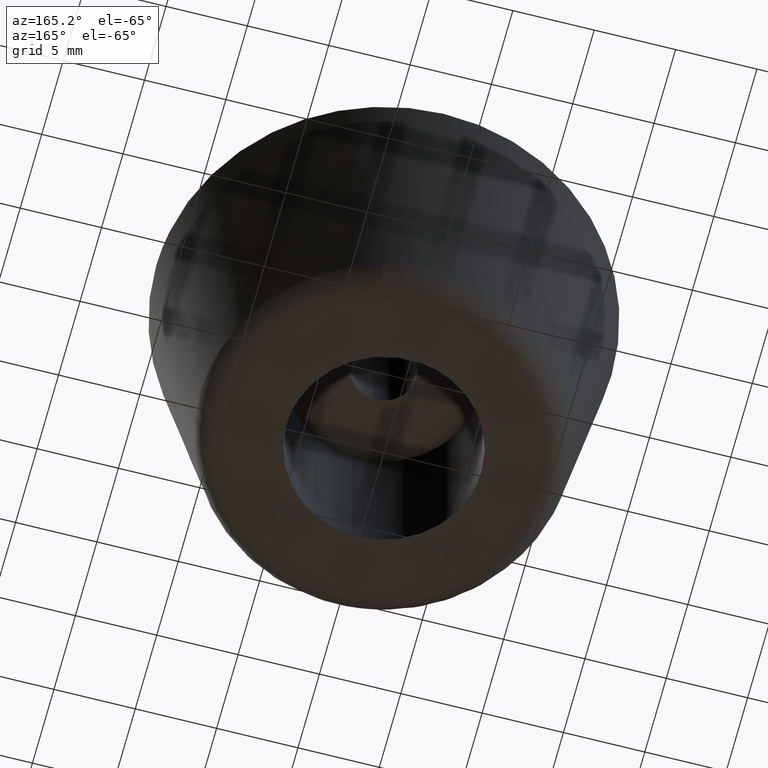
[diagram: clean part render]
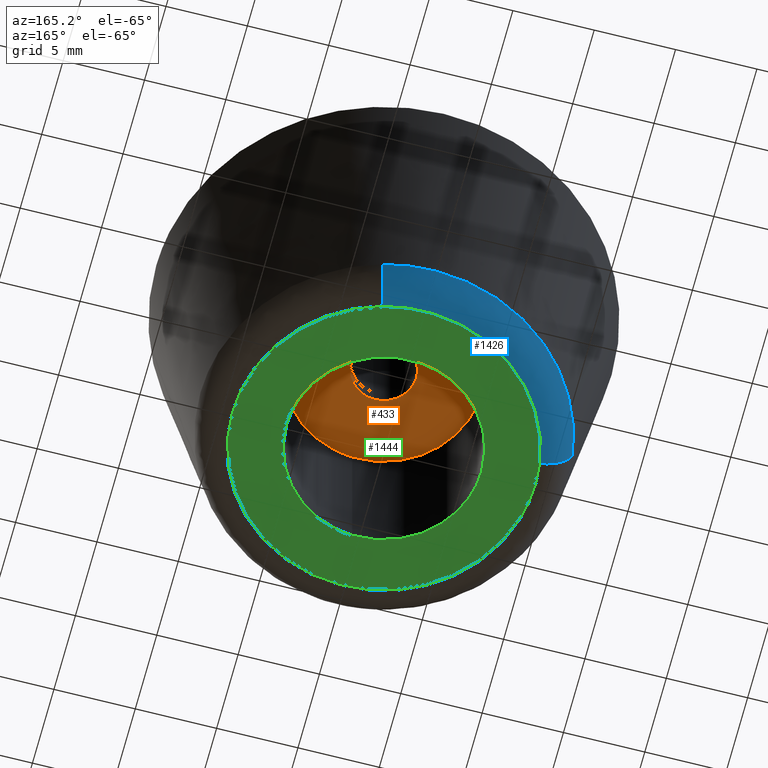
[diagram: same view with three faces highlighted in distinct colors, each labeled with its STEP entity id]
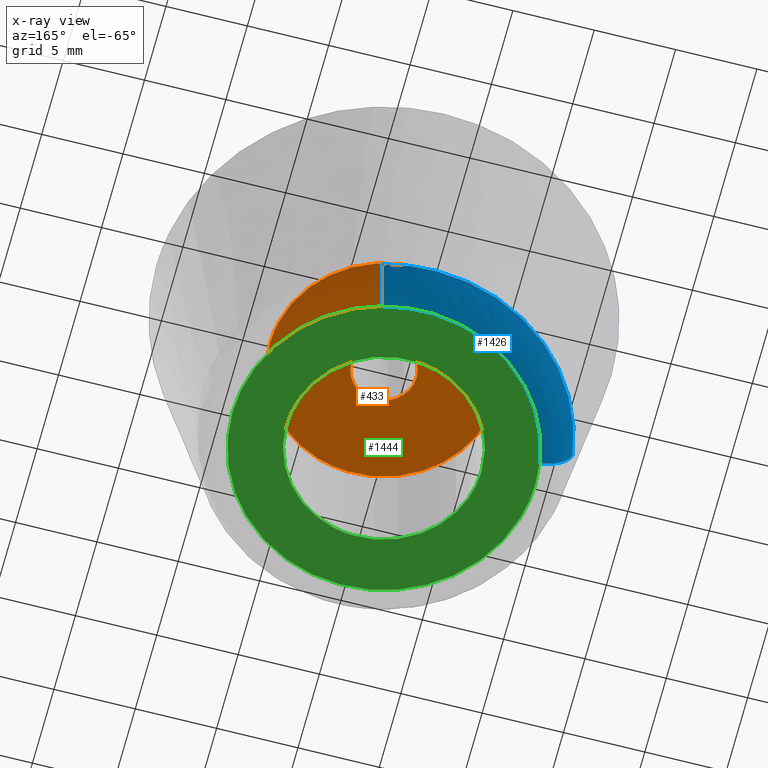
[diagram: x-ray of the same camera — body ghosted, the three highlighted faces saturated]
A machine part, auxiliary view with three faces highlighted in distinct colors.
The next image is the same camera in x-ray (body ghosted, the three faces saturated) — at least one of them is partly hidden behind the body in this view.
Their STEP definitions:

[orange] entity #433 — the highlighted face is a freeform B-spline surface patch.
#66=CARTESIAN_POINT('',(-0.236065760811937,1.986019374670056,11.000000000000130));
#67=VERTEX_POINT('',#66);
#68=CARTESIAN_POINT('',(2.0,0.0,11.0));
#69=VERTEX_POINT('',#68);
#70=CARTESIAN_POINT('',(-0.236065760811937,1.986019374670057,11.000000000000130));
#71=CARTESIAN_POINT('',(-0.118446870736341,2.000000000000000,11.000000000000002));
#72=CARTESIAN_POINT('',(0.0,2.0,11.0));
#73=CARTESIAN_POINT('',(2.000000000000000,2.000000000000000,11.0));
#74=CARTESIAN_POINT('',(2.0,0.0,11.0));
#82=(BOUNDED_CURVE()B_SPLINE_CURVE(2,(#70,#71,#72,#73,#74),.UNSPECIFIED.,.F.,.U.)B_SPLINE_CURVE_WITH_KNOTS((3,2,3),(0.229562703999639,0.250000000000000,0.500000000000000),.UNSPECIFIED.)CURVE()GEOMETRIC_REPRESENTATION_ITEM()RATIONAL_B_SPLINE_CURVE((0.956027205946445,0.976056218362443,1.0,0.707106781186548,1.0))REPRESENTATION_ITEM(''));
#83=EDGE_CURVE('',#67,#69,#82,.T.);
#85=CARTESIAN_POINT('',(0.122097079096483,-1.996269596842097,11.0));
#86=VERTEX_POINT('',#85);
#87=CARTESIAN_POINT('',(2.0,0.0,11.0));
#88=CARTESIAN_POINT('',(2.0,-1.881412133760827,11.0));
#89=CARTESIAN_POINT('',(0.122097079096483,-1.996269596842096,11.0));
#97=(BOUNDED_CURVE()B_SPLINE_CURVE(2,(#87,#88,#89),.UNSPECIFIED.,.F.,.U.)B_SPLINE_CURVE_WITH_KNOTS((3,3),(0.500000000000000,0.739332962237340),.UNSPECIFIED.)CURVE()GEOMETRIC_REPRESENTATION_ITEM()RATIONAL_B_SPLINE_CURVE((1.0,0.719603993288588,0.976072041663282))REPRESENTATION_ITEM(''));
#98=EDGE_CURVE('',#69,#86,#97,.T.);
#165=CARTESIAN_POINT('',(-2.0,0.0,11.0));
#166=VERTEX_POINT('',#165);
#167=CARTESIAN_POINT('',(-2.0,0.0,11.0));
#168=CARTESIAN_POINT('',(-1.999999999999999,1.776351491514780,11.0));
#169=CARTESIAN_POINT('',(-0.236065760811937,1.986019374670057,11.000000000000130));
#177=(BOUNDED_CURVE()B_SPLINE_CURVE(2,(#167,#168,#169),.UNSPECIFIED.,.F.,.U.)B_SPLINE_CURVE_WITH_KNOTS((3,3),(0.0,0.229562703999639),.UNSPECIFIED.)CURVE()GEOMETRIC_REPRESENTATION_ITEM()RATIONAL_B_SPLINE_CURVE((1.0,0.731050562824104,0.956027205946445))REPRESENTATION_ITEM(''));
#178=EDGE_CURVE('',#166,#67,#177,.T.);
#212=CARTESIAN_POINT('',(0.122097079096483,-1.996269596842096,11.000000000000004));
#213=CARTESIAN_POINT('',(0.061105526624022,-2.000000000000000,10.999999999999996));
#214=CARTESIAN_POINT('',(0.0,-2.0,11.0));
#215=CARTESIAN_POINT('',(-2.000000000000000,-2.000000000000000,11.0));
#216=CARTESIAN_POINT('',(-2.0,0.0,11.0));
#224=(BOUNDED_CURVE()B_SPLINE_CURVE(2,(#212,#213,#214,#215,#216),.UNSPECIFIED.,.F.,.U.)B_SPLINE_CURVE_WITH_KNOTS((3,2,3),(0.739332962237341,0.750000000000000,1.0),.UNSPECIFIED.)CURVE()GEOMETRIC_REPRESENTATION_ITEM()RATIONAL_B_SPLINE_CURVE((0.976072041663284,0.987502787897960,1.0,0.707106781186548,1.0))REPRESENTATION_ITEM(''));
#225=EDGE_CURVE('',#86,#166,#224,.T.);
#252=CARTESIAN_POINT('',(-0.826236732452056,6.951067030459306,11.000000000000080));
#253=VERTEX_POINT('',#252);
#254=CARTESIAN_POINT('',(7.0,0.0,11.0));
#255=VERTEX_POINT('',#254);
#256=CARTESIAN_POINT('',(-0.826236732452056,6.951067030459306,11.000000000000078));
#257=CARTESIAN_POINT('',(-0.414567367107993,7.0,11.000000000000002));
#258=CARTESIAN_POINT('',(0.0,7.0,11.0));
#259=CARTESIAN_POINT('',(6.999999999999999,6.999999999999999,11.0));
#260=CARTESIAN_POINT('',(7.0,0.0,11.0));
#268=(BOUNDED_CURVE()B_SPLINE_CURVE(2,(#256,#257,#258,#259,#260),.UNSPECIFIED.,.F.,.U.)B_SPLINE_CURVE_WITH_KNOTS((3,2,3),(0.229562544270831,0.250000000000000,0.500000000000000),.UNSPECIFIED.)CURVE()GEOMETRIC_REPRESENTATION_ITEM()RATIONAL_B_SPLINE_CURVE((0.956026892870993,0.976056031228504,1.0,0.707106781186547,1.0))REPRESENTATION_ITEM(''));
#269=EDGE_CURVE('',#253,#255,#268,.T.);
#310=CARTESIAN_POINT('',(0.427335137410301,-6.986943872703781,10.999999999999840));
#311=VERTEX_POINT('',#310);
#317=CARTESIAN_POINT('',(7.0,0.0,11.0));
#318=CARTESIAN_POINT('',(7.0,-6.584946848916482,11.0));
#319=CARTESIAN_POINT('',(0.427335137410301,-6.986943872703781,10.999999999999847));
#327=(BOUNDED_CURVE()B_SPLINE_CURVE(2,(#317,#318,#319),.UNSPECIFIED.,.F.,.U.)B_SPLINE_CURVE_WITH_KNOTS((3,3),(0.500000000000000,0.739333076813124),.UNSPECIFIED.)CURVE()GEOMETRIC_REPRESENTATION_ITEM()RATIONAL_B_SPLINE_CURVE((1.0,0.719603859054707,0.976072287221122))REPRESENTATION_ITEM(''));
#328=EDGE_CURVE('',#255,#311,#327,.T.);
#351=CARTESIAN_POINT('',(-7.0,0.0,11.0));
#352=VERTEX_POINT('',#351);
#353=CARTESIAN_POINT('',(-7.0,0.0,11.0));
#354=CARTESIAN_POINT('',(-6.999999999999999,6.217224302896083,11.0));
#355=CARTESIAN_POINT('',(-0.826236732452056,6.951067030459306,11.000000000000078));
#363=(BOUNDED_CURVE()B_SPLINE_CURVE(2,(#353,#354,#355),.UNSPECIFIED.,.F.,.U.)B_SPLINE_CURVE_WITH_KNOTS((3,3),(0.0,0.229562544270831),.UNSPECIFIED.)CURVE()GEOMETRIC_REPRESENTATION_ITEM()RATIONAL_B_SPLINE_CURVE((1.0,0.731050749958043,0.956026892870993))REPRESENTATION_ITEM(''));
#364=EDGE_CURVE('',#352,#253,#363,.T.);
#366=CARTESIAN_POINT('',(0.427335137410301,-6.986943872703781,10.999999999999847));
#367=CARTESIAN_POINT('',(0.213867016919271,-6.999999999999999,11.000000000000004));
#368=CARTESIAN_POINT('',(0.0,-7.0,11.0));
#369=CARTESIAN_POINT('',(-6.999999999999999,-6.999999999999999,11.0));
#370=CARTESIAN_POINT('',(-7.0,0.0,11.0));
#378=(BOUNDED_CURVE()B_SPLINE_CURVE(2,(#366,#367,#368,#369,#370),.UNSPECIFIED.,.F.,.U.)B_SPLINE_CURVE_WITH_KNOTS((3,2,3),(0.739333076813124,0.750000000000000,1.0),.UNSPECIFIED.)CURVE()GEOMETRIC_REPRESENTATION_ITEM()RATIONAL_B_SPLINE_CURVE((0.976072287221122,0.987502922131841,1.0,0.707106781186547,1.0))REPRESENTATION_ITEM(''));
#379=EDGE_CURVE('',#311,#352,#378,.T.);
#416=CARTESIAN_POINT('',(-7.699299972865284,-7.699130124775166,11.0));
#417=CARTESIAN_POINT('',(7.699300348374545,-7.699130124775166,11.0));
#418=CARTESIAN_POINT('',(-7.699299972865285,7.699172682491536,11.0));
#419=CARTESIAN_POINT('',(7.699300348374545,7.699172682491536,11.0));
#420=B_SPLINE_SURFACE_WITH_KNOTS('',1,1,((#416,#418),(#417,#419)),.UNSPECIFIED.,.F.,.F.,.U.,(2,2),(2,2),(0.0,15.398600321239829),(0.0,15.398302807266701),.UNSPECIFIED.);
#421=ORIENTED_EDGE('',*,*,#364,.T.);
#422=ORIENTED_EDGE('',*,*,#269,.T.);
#423=ORIENTED_EDGE('',*,*,#328,.T.);
#424=ORIENTED_EDGE('',*,*,#379,.T.);
#425=EDGE_LOOP('',(#421,#422,#423,#424));
#426=FACE_OUTER_BOUND('',#425,.T.);
#427=ORIENTED_EDGE('',*,*,#98,.F.);
#428=ORIENTED_EDGE('',*,*,#83,.F.);
#429=ORIENTED_EDGE('',*,*,#178,.F.);
#430=ORIENTED_EDGE('',*,*,#225,.F.);
#431=EDGE_LOOP('',(#427,#428,#429,#430));
#432=FACE_BOUND('',#431,.T.);
#433=ADVANCED_FACE('',(#426,#432),#420,.F.);

[blue] entity #1426 — the highlighted face is a freeform B-spline surface patch.
#661=CARTESIAN_POINT('',(2.970473814379306,10.880331646873730,1.671203065201258));
#662=VERTEX_POINT('',#661);
#676=CARTESIAN_POINT('',(-11.150542241881110,1.694324403127014,1.671202012687763));
#677=VERTEX_POINT('',#676);
#678=CARTESIAN_POINT('',(-11.150542241881109,1.694324403127015,1.671202012687763));
#679=CARTESIAN_POINT('',(-9.694222035811679,11.278534029576859,1.671202415486549));
#680=CARTESIAN_POINT('',(0.000000032772429,11.278534081281331,1.671202923196751));
#681=CARTESIAN_POINT('',(1.511927141924661,11.278534089345252,1.671203002380085));
#682=CARTESIAN_POINT('',(2.970473814379306,10.880331646873728,1.671203065201258));
#690=(BOUNDED_CURVE()B_SPLINE_CURVE(2,(#678,#679,#680,#681,#682),.UNSPECIFIED.,.F.,.U.)B_SPLINE_CURVE_WITH_KNOTS((3,2,3),(0.025897584623497,0.250000000000000,0.294901820640729),.UNSPECIFIED.)CURVE()GEOMETRIC_REPRESENTATION_ITEM()RATIONAL_B_SPLINE_CURVE((0.945604234434505,0.737447688866027,1.0,0.947394244887810,0.913685243221362))REPRESENTATION_ITEM(''));
#691=EDGE_CURVE('',#677,#662,#690,.T.);
#1300=CARTESIAN_POINT('',(2.450898413930922,8.977193636920156,3.561108E-016));
#1301=VERTEX_POINT('',#1300);
#1317=CARTESIAN_POINT('',(2.970473814379306,10.880331646873728,1.671203065201258));
#1318=CARTESIAN_POINT('',(2.897118840849236,10.611631698535001,-5.104030E-009));
#1319=CARTESIAN_POINT('',(2.450898413930922,8.977193636920156,3.561108E-016));
#1327=(BOUNDED_CURVE()B_SPLINE_CURVE(2,(#1317,#1318,#1319),.UNSPECIFIED.,.F.,.U.)B_SPLINE_CURVE_WITH_KNOTS((3,3),(-1.709168621674758,-0.288869905234136),.UNSPECIFIED.)CURVE()GEOMETRIC_REPRESENTATION_ITEM()RATIONAL_B_SPLINE_CURVE((0.856788306107111,0.653960441631901,0.857349303007051))REPRESENTATION_ITEM(''));
#1328=EDGE_CURVE('',#662,#1301,#1327,.T.);
#1335=CARTESIAN_POINT('',(-9.200142019135212,1.397961175091028,3.717354E-016));
#1336=VERTEX_POINT('',#1335);
#1337=CARTESIAN_POINT('',(-11.150542241881103,1.694324403127014,1.671202012687764));
#1338=CARTESIAN_POINT('',(-10.875169366907341,1.652481506887707,2.551883E-010));
#1339=CARTESIAN_POINT('',(-9.200142019135212,1.397961175091028,3.717354E-016));
#1347=(BOUNDED_CURVE()B_SPLINE_CURVE(2,(#1337,#1338,#1339),.UNSPECIFIED.,.F.,.U.)B_SPLINE_CURVE_WITH_KNOTS((3,3),(-1.709168035708442,-0.288869904593461),.UNSPECIFIED.)CURVE()GEOMETRIC_REPRESENTATION_ITEM()RATIONAL_B_SPLINE_CURVE((0.895391961968966,0.683425658518482,0.895978410483865))REPRESENTATION_ITEM(''));
#1348=EDGE_CURVE('',#677,#1336,#1347,.T.);
#1383=CARTESIAN_POINT('',(-11.167302817865147,1.696871171909387,1.797685380797931));
#1384=CARTESIAN_POINT('',(-9.470431645955754,12.864173989774525,1.797685380797930));
#1385=CARTESIAN_POINT('',(1.696871171909386,11.167302817865147,1.797685380797931));
#1386=CARTESIAN_POINT('',(2.343745814711070,11.069010244348341,1.797685380797930));
#1387=CARTESIAN_POINT('',(2.974944669422256,10.896684276137950,1.797685380797931));
#1388=CARTESIAN_POINT('',(-10.974658487055958,1.667598874317624,-0.118696933064977));
#1389=CARTESIAN_POINT('',(-9.307059612738335,12.642257361373577,-0.118696933064977));
#1390=CARTESIAN_POINT('',(1.667598874317624,10.974658487055958,-0.118696933064977));
#1391=CARTESIAN_POINT('',(2.303314445433654,10.878061533990891,-0.118696933064977));
#1392=CARTESIAN_POINT('',(2.923624647534934,10.708708317694576,-0.118696933064977));
#1393=CARTESIAN_POINT('',(-9.074126460979855,1.378813116562414,0.004065774882406));
#1394=CARTESIAN_POINT('',(-7.695313344417441,10.452939577542267,0.004065774882406));
#1395=CARTESIAN_POINT('',(1.378813116562413,9.074126460979857,0.004065774882406));
#1396=CARTESIAN_POINT('',(1.904438901849912,8.994257646028430,0.004065774882406));
#1397=CARTESIAN_POINT('',(2.417327136644810,8.854232104180460,0.004065774882406));
#1405=(BOUNDED_SURFACE()B_SPLINE_SURFACE(2,2,((#1383,#1388,#1393),(#1384,#1389,#1394),(#1385,#1390,#1395),(#1386,#1391,#1396),(#1387,#1392,#1397)),.UNSPECIFIED.,.F.,.F.,.U.)B_SPLINE_SURFACE_WITH_KNOTS((3,2,3),(3,3),(0.0,18.714975447752860,20.212172055733781),(0.0,3.226046628450938),.UNSPECIFIED.)GEOMETRIC_REPRESENTATION_ITEM()RATIONAL_B_SPLINE_SURFACE(((0.917626792594530,0.661161626487778,0.918271643457117),(0.648860127642054,0.467511869549835,0.649316106059843),(0.917626792594530,0.661161626487778,0.918271643457117),(0.896125479903601,0.645669660707047,0.896755220985014),(0.878064373962381,0.632656407087346,0.878681422825302)))REPRESENTATION_ITEM('')SURFACE());
#1406=CARTESIAN_POINT('',(-9.200142019135212,1.397961175091028,3.717354E-016));
#1407=CARTESIAN_POINT('',(-7.998554462694363,9.305745999999999,0.0));
#1408=CARTESIAN_POINT('',(0.0,9.305746000000001,0.0));
#1409=CARTESIAN_POINT('',(1.247471061243242,9.305746000000003,0.0));
#1410=CARTESIAN_POINT('',(2.450898413930922,8.977193636920156,3.561108E-016));
#1418=(BOUNDED_CURVE()B_SPLINE_CURVE(2,(#1406,#1407,#1408,#1409,#1410),.UNSPECIFIED.,.F.,.U.)B_SPLINE_CURVE_WITH_KNOTS((3,2,3),(0.025897584623839,0.250000000000000,0.294901926752741),.UNSPECIFIED.)CURVE()GEOMETRIC_REPRESENTATION_ITEM()RATIONAL_B_SPLINE_CURVE((0.945604234433871,0.737447688866427,1.0,0.947394120569856,0.913685083899198))REPRESENTATION_ITEM(''));
#1419=EDGE_CURVE('',#1336,#1301,#1418,.T.);
#1420=ORIENTED_EDGE('',*,*,#1419,.F.);
#1421=ORIENTED_EDGE('',*,*,#1348,.F.);
#1422=ORIENTED_EDGE('',*,*,#691,.T.);
#1423=ORIENTED_EDGE('',*,*,#1328,.T.);
#1424=EDGE_LOOP('',(#1420,#1421,#1422,#1423));
#1425=FACE_OUTER_BOUND('',#1424,.T.);
#1426=ADVANCED_FACE('',(#1425),#1405,.T.);

[green] entity #1444 — the highlighted face is a freeform B-spline surface patch.
#1107=CARTESIAN_POINT('',(-0.708204750544155,5.958057236323452,-1.078983E-015));
#1108=VERTEX_POINT('',#1107);
#1109=CARTESIAN_POINT('',(6.0,0.0,0.0));
#1110=VERTEX_POINT('',#1109);
#1111=CARTESIAN_POINT('',(-0.708204750544155,5.958057236323452,-1.078983E-015));
#1112=CARTESIAN_POINT('',(-0.355344053565167,6.000000000000001,0.0));
#1113=CARTESIAN_POINT('',(0.0,6.0,0.0));
#1114=CARTESIAN_POINT('',(6.0,6.0,0.0));
#1115=CARTESIAN_POINT('',(6.0,0.0,0.0));
#1123=(BOUNDED_CURVE()B_SPLINE_CURVE(2,(#1111,#1112,#1113,#1114,#1115),.UNSPECIFIED.,.F.,.U.)B_SPLINE_CURVE_WITH_KNOTS((3,2,3),(0.229562510810396,0.250000000000000,0.500000000000000),.UNSPECIFIED.)CURVE()GEOMETRIC_REPRESENTATION_ITEM()RATIONAL_B_SPLINE_CURVE((0.956026827287138,0.976055992027167,1.0,0.707106781186548,1.0))REPRESENTATION_ITEM(''));
#1124=EDGE_CURVE('',#1108,#1110,#1123,.T.);
#1126=CARTESIAN_POINT('',(0.366282372672069,-5.988809332696345,2.778333E-014));
#1127=VERTEX_POINT('',#1126);
#1128=CARTESIAN_POINT('',(6.0,0.0,0.0));
#1129=CARTESIAN_POINT('',(5.999999999999999,-5.644244771557840,0.0));
#1130=CARTESIAN_POINT('',(0.366282372672069,-5.988809332696345,2.778333E-014));
#1138=(BOUNDED_CURVE()B_SPLINE_CURVE(2,(#1128,#1129,#1130),.UNSPECIFIED.,.F.,.U.)B_SPLINE_CURVE_WITH_KNOTS((3,3),(0.500000000000000,0.739333217642960),.UNSPECIFIED.)CURVE()GEOMETRIC_REPRESENTATION_ITEM()RATIONAL_B_SPLINE_CURVE((1.0,0.719603694062291,0.976072589046756))REPRESENTATION_ITEM(''));
#1139=EDGE_CURVE('',#1110,#1127,#1138,.T.);
#1206=CARTESIAN_POINT('',(-6.0,0.0,0.0));
#1207=VERTEX_POINT('',#1206);
#1208=CARTESIAN_POINT('',(-6.0,0.0,0.0));
#1209=CARTESIAN_POINT('',(-6.000000000000001,5.329048339973039,0.0));
#1210=CARTESIAN_POINT('',(-0.708204750544155,5.958057236323452,-1.078983E-015));
#1218=(BOUNDED_CURVE()B_SPLINE_CURVE(2,(#1208,#1209,#1210),.UNSPECIFIED.,.F.,.U.)B_SPLINE_CURVE_WITH_KNOTS((3,3),(0.0,0.229562510810396),.UNSPECIFIED.)CURVE()GEOMETRIC_REPRESENTATION_ITEM()RATIONAL_B_SPLINE_CURVE((1.0,0.731050789159381,0.956026827287138))REPRESENTATION_ITEM(''));
#1219=EDGE_CURVE('',#1207,#1108,#1218,.T.);
#1253=CARTESIAN_POINT('',(0.366282372672069,-5.988809332696345,2.778333E-014));
#1254=CARTESIAN_POINT('',(0.183312135095850,-6.000000000000001,0.0));
#1255=CARTESIAN_POINT('',(0.0,-6.0,0.0));
#1256=CARTESIAN_POINT('',(-6.0,-6.0,0.0));
#1257=CARTESIAN_POINT('',(-6.0,0.0,0.0));
#1265=(BOUNDED_CURVE()B_SPLINE_CURVE(2,(#1253,#1254,#1255,#1256,#1257),.UNSPECIFIED.,.F.,.U.)B_SPLINE_CURVE_WITH_KNOTS((3,2,3),(0.739333217642960,0.750000000000000,1.0),.UNSPECIFIED.)CURVE()GEOMETRIC_REPRESENTATION_ITEM()RATIONAL_B_SPLINE_CURVE((0.976072589046756,0.987503087124256,1.0,0.707106781186548,1.0))REPRESENTATION_ITEM(''));
#1266=EDGE_CURVE('',#1127,#1207,#1265,.T.);
#1300=CARTESIAN_POINT('',(2.450898413930922,8.977193636920156,3.561108E-016));
#1301=VERTEX_POINT('',#1300);
#1302=CARTESIAN_POINT('',(9.305746000000001,0.0,0.0));
#1303=VERTEX_POINT('',#1302);
#1304=CARTESIAN_POINT('',(2.450898413930922,8.977193636920156,3.561108E-016));
#1305=CARTESIAN_POINT('',(9.305746000000001,7.105725139837297,0.0));
#1306=CARTESIAN_POINT('',(9.305746000000001,0.0,0.0));
#1314=(BOUNDED_CURVE()B_SPLINE_CURVE(2,(#1304,#1305,#1306),.UNSPECIFIED.,.F.,.U.)B_SPLINE_CURVE_WITH_KNOTS((3,3),(0.294901926752741,0.500000000000000),.UNSPECIFIED.)CURVE()GEOMETRIC_REPRESENTATION_ITEM()RATIONAL_B_SPLINE_CURVE((0.913685083899198,0.759712660616692,1.0))REPRESENTATION_ITEM(''));
#1315=EDGE_CURVE('',#1301,#1303,#1314,.T.);
#1335=CARTESIAN_POINT('',(-9.200142019135212,1.397961175091028,3.717354E-016));
#1336=VERTEX_POINT('',#1335);
#1350=CARTESIAN_POINT('',(-9.305746000000001,0.0,0.0));
#1351=VERTEX_POINT('',#1350);
#1352=CARTESIAN_POINT('',(-9.305746000000001,0.0,0.0));
#1353=CARTESIAN_POINT('',(-9.305746000000003,0.702969325211412,0.0));
#1354=CARTESIAN_POINT('',(-9.200142019135212,1.397961175091028,3.717354E-016));
#1362=(BOUNDED_CURVE()B_SPLINE_CURVE(2,(#1352,#1353,#1354),.UNSPECIFIED.,.F.,.U.)B_SPLINE_CURVE_WITH_KNOTS((3,3),(0.0,0.025897584623839),.UNSPECIFIED.)CURVE()GEOMETRIC_REPRESENTATION_ITEM()RATIONAL_B_SPLINE_CURVE((1.0,0.969659092320120,0.945604234433871))REPRESENTATION_ITEM(''));
#1363=EDGE_CURVE('',#1351,#1336,#1362,.T.);
#1365=CARTESIAN_POINT('',(9.305746000000001,0.0,0.0));
#1366=CARTESIAN_POINT('',(9.305746000000001,-9.305746000000001,0.0));
#1367=CARTESIAN_POINT('',(0.0,-9.305746000000001,0.0));
#1368=CARTESIAN_POINT('',(-9.305746000000001,-9.305746000000001,0.0));
#1369=CARTESIAN_POINT('',(-9.305746000000001,0.0,0.0));
#1377=(BOUNDED_CURVE()B_SPLINE_CURVE(2,(#1365,#1366,#1367,#1368,#1369),.UNSPECIFIED.,.F.,.U.)B_SPLINE_CURVE_WITH_KNOTS((3,2,3),(0.500000000000000,0.750000000000000,1.0),.UNSPECIFIED.)CURVE()GEOMETRIC_REPRESENTATION_ITEM()RATIONAL_B_SPLINE_CURVE((1.0,0.707106781186547,1.0,0.707106781186547,1.0))REPRESENTATION_ITEM(''));
#1378=EDGE_CURVE('',#1303,#1351,#1377,.T.);
#1406=CARTESIAN_POINT('',(-9.200142019135212,1.397961175091028,3.717354E-016));
#1407=CARTESIAN_POINT('',(-7.998554462694363,9.305745999999999,0.0));
#1408=CARTESIAN_POINT('',(0.0,9.305746000000001,0.0));
#1409=CARTESIAN_POINT('',(1.247471061243242,9.305746000000003,0.0));
#1410=CARTESIAN_POINT('',(2.450898413930922,8.977193636920156,3.561108E-016));
#1418=(BOUNDED_CURVE()B_SPLINE_CURVE(2,(#1406,#1407,#1408,#1409,#1410),.UNSPECIFIED.,.F.,.U.)B_SPLINE_CURVE_WITH_KNOTS((3,2,3),(0.025897584623839,0.250000000000000,0.294901926752741),.UNSPECIFIED.)CURVE()GEOMETRIC_REPRESENTATION_ITEM()RATIONAL_B_SPLINE_CURVE((0.945604234433871,0.737447688866427,1.0,0.947394120569856,0.913685083899198))REPRESENTATION_ITEM(''));
#1419=EDGE_CURVE('',#1336,#1301,#1418,.T.);
#1427=CARTESIAN_POINT('',(-10.235390164038691,-10.235340833434501,0.0));
#1428=CARTESIAN_POINT('',(10.235390496838100,-10.235340833434501,0.0));
#1429=CARTESIAN_POINT('',(-10.235390164038691,10.234353566662801,0.0));
#1430=CARTESIAN_POINT('',(10.235390496838100,10.234353566662801,0.0));
#1431=B_SPLINE_SURFACE_WITH_KNOTS('',1,1,((#1427,#1429),(#1428,#1430)),.UNSPECIFIED.,.F.,.F.,.U.,(2,2),(2,2),(0.0,20.470780660876791),(0.0,20.469694400097310),.UNSPECIFIED.);
#1432=ORIENTED_EDGE('',*,*,#1363,.T.);
#1433=ORIENTED_EDGE('',*,*,#1419,.T.);
#1434=ORIENTED_EDGE('',*,*,#1315,.T.);
#1435=ORIENTED_EDGE('',*,*,#1378,.T.);
#1436=EDGE_LOOP('',(#1432,#1433,#1434,#1435));
#1437=FACE_OUTER_BOUND('',#1436,.T.);
#1438=ORIENTED_EDGE('',*,*,#1139,.F.);
#1439=ORIENTED_EDGE('',*,*,#1124,.F.);
#1440=ORIENTED_EDGE('',*,*,#1219,.F.);
#1441=ORIENTED_EDGE('',*,*,#1266,.F.);
#1442=EDGE_LOOP('',(#1438,#1439,#1440,#1441));
#1443=FACE_BOUND('',#1442,.T.);
#1444=ADVANCED_FACE('',(#1437,#1443),#1431,.F.);